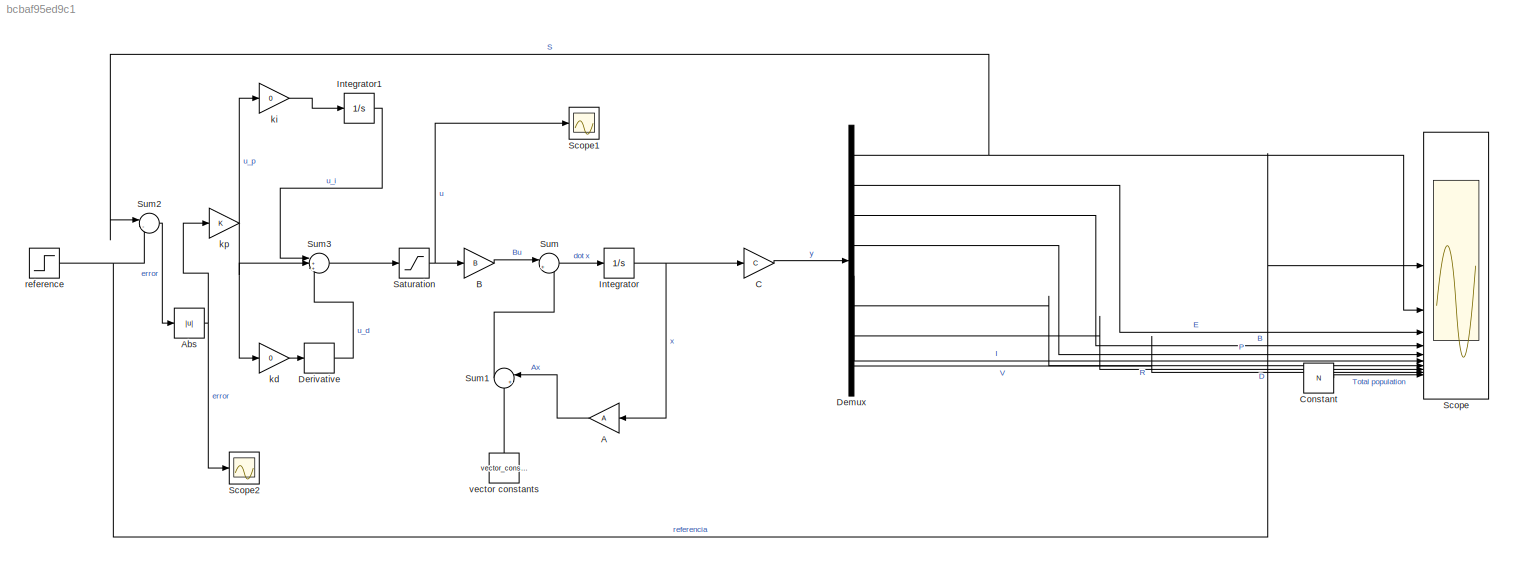
MODEL slx_bcbaf95ed9c1
KIND model
CONFIG AbsTol = auto
CONFIG EnableMultiTasking = off
CONFIG FixedStep = auto
CONFIG MaxStep = auto
CONFIG MinStep = auto
CONFIG RelTol = 1e-3
CONFIG SampleTimeConstraint = Unconstrained
CONFIG SolverName = VariableStepAuto
CONFIG StartTime = 0.0
CONFIG StopTime = 90
BLOCK [Gain] A
  Gain = A
  Multiplication = Matrix(K*u)
  NameLocation = top
BLOCK [Abs] Abs
  SaturateOnIntegerOverflow = off
BLOCK [Gain] B
  Gain = B
BLOCK [Gain] C
  Gain = C
  Multiplication = Matrix(K*u)
BLOCK [Constant] Constant
  Value = N
BLOCK [Demux] Demux
  Outputs = 8
BLOCK [Derivative] Derivative
BLOCK [Integrator] Integrator
  InitialCondition = [N*0.85; N*0.05;0;0;N*0.1;0;0;0]
BLOCK [Integrator] Integrator1
BLOCK [Saturate] Saturation
  LowerLimit = -0
  UpperLimit = 100000
BLOCK [Scope] Scope
  Floating = off
  NumInputPorts = 10
  ScopeSpecificationString = Simulink.scopes.TimeScopeBlockCfg('CurrentConfiguration', extmgr.ConfigurationSet(extmgr.Configuration('Core','General UI',true,'FigureColor',[1 1 1]),extmgr.Configuration('Core','Source UI',true),extmgr.Configuration('Sources','WiredSimulink',true),extmgr.Configuration('Visuals','Time Domain',true,'SerializedDisplays',{struct('MinYLimReal','-62612.26424','MaxYLimReal','9171770.63442','YLabelReal'...<+2683ch>
BLOCK [Scope] Scope1
  Floating = off
  NumInputPorts = 1
  ScopeSpecificationString = Simulink.scopes.TimeScopeBlockCfg('CurrentConfiguration', extmgr.ConfigurationSet(extmgr.Configuration('Core','General UI',true,'FigureColor',[1 1 1]),extmgr.Configuration('Core','Source UI',true),extmgr.Configuration('Sources','WiredSimulink',true,'DataLoggingVariableName','ScopeData1'),extmgr.Configuration('Visuals','Time Domain',true,'SerializedDisplays',{struct('MinYLimReal','-6770.69855','Max...<+2387ch>
BLOCK [Scope] Scope2
  Floating = off
  NumInputPorts = 1
  ScopeSpecificationString = Simulink.scopes.TimeScopeBlockCfg('CurrentConfiguration', extmgr.ConfigurationSet(extmgr.Configuration('Core','General UI',true,'FigureColor',[1 1 1]),extmgr.Configuration('Core','Source UI',true),extmgr.Configuration('Sources','WiredSimulink',true,'DataLoggingVariableName','ScopeData2'),extmgr.Configuration('Visuals','Time Domain',true,'SerializedDisplays',{struct('MinYLimReal','-791145.69855','M...<+1553ch>
BLOCK [Sum] Sum
  Inputs = |++
BLOCK [Sum] Sum1
  Inputs = |++
  NameLocation = top
BLOCK [Sum] Sum2
  Inputs = |-+
BLOCK [Sum] Sum3
  Inputs = |+++
BLOCK [Gain] kd
  Gain = 0
BLOCK [Gain] ki
  Gain = 0
BLOCK [Gain] kp
BLOCK [Step] reference
  SampleTime = 0
BLOCK [Constant] vector constants
  NameLocation = right
  Value = vector_constants
LINE A:1 -> Sum1:1
NET Abs:1 -> Scope2:1, kp:1
LINE B:1 -> Sum:1
LINE C:1 -> Demux:1
LINE Constant:1 -> Scope:10
NET Demux:1 -> Scope:2, Sum2:1
LINE Demux:2 -> Scope:3
LINE Demux:3 -> Scope:4
LINE Demux:4 -> Scope:5
LINE Demux:5 -> Scope:6
LINE Demux:6 -> Scope:7
LINE Demux:7 -> Scope:8
LINE Demux:8 -> Scope:9
LINE Derivative:1 -> Sum3:3
LINE Integrator1:1 -> Sum3:1
NET Integrator:1 -> A:1, C:1
NET Saturation:1 -> B:1, Scope1:1
LINE Sum1:1 -> Sum:2
LINE Sum2:1 -> Abs:1
LINE Sum3:1 -> Saturation:1
LINE Sum:1 -> Integrator:1
LINE kd:1 -> Derivative:1
LINE ki:1 -> Integrator1:1
NET kp:1 -> Sum3:2, kd:1, ki:1
NET reference:1 -> Scope:1, Sum2:2
LINE vector constants:1 -> Sum1:2
note: NET lines group one-source signal fan-out (src -> all destinations, sorted); 1:1 wires keep LINE
